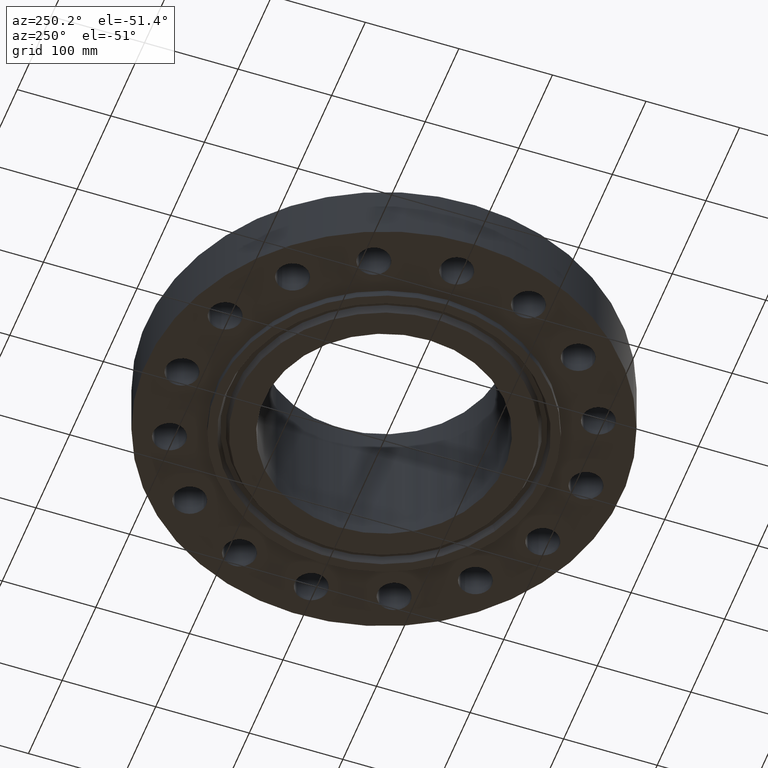
[diagram: clean part render]
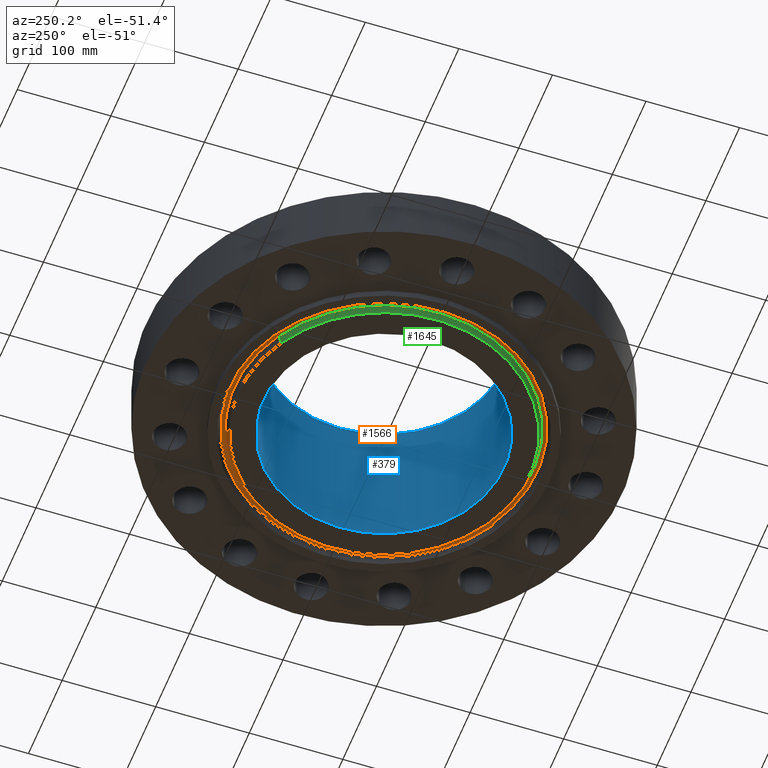
[diagram: same view with three faces highlighted in distinct colors, each labeled with its STEP entity id]
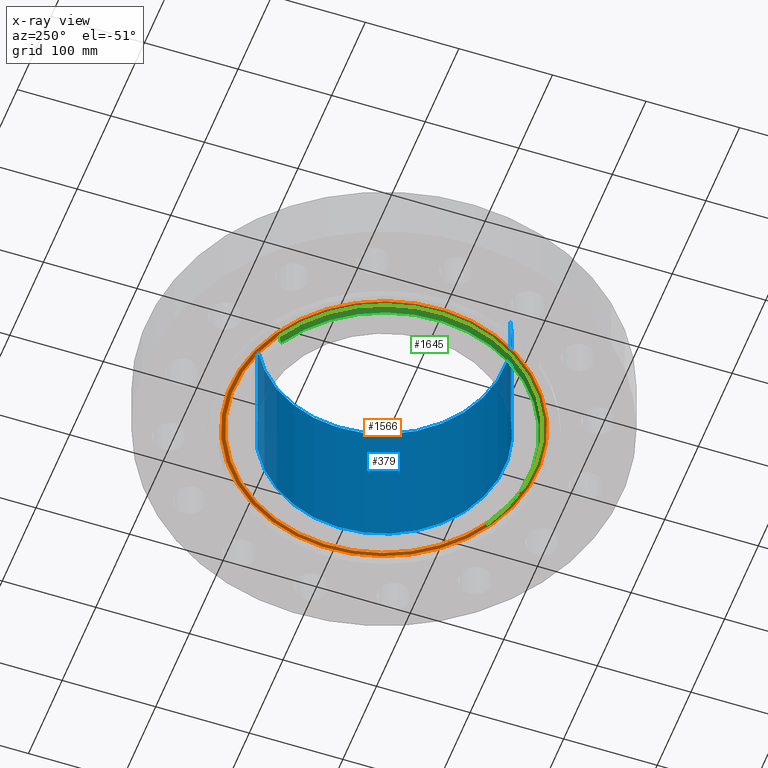
[diagram: x-ray of the same camera — body ghosted, the three highlighted faces saturated]
A machine part, auxiliary view with three faces highlighted in distinct colors.
The next image is the same camera in x-ray (body ghosted, the three faces saturated) — at least one of them is partly hidden behind the body in this view.
Their STEP definitions:

[orange] entity #1566 — the highlighted planar face has unit normal (0, 0, -1).
#484=AXIS2_PLACEMENT_3D('Plane Axis2P3D',#481,#482,#483) ;
#1488=AXIS2_PLACEMENT_3D('Circle Axis2P3D',#1486,#1487,$) ;
#1534=AXIS2_PLACEMENT_3D('Circle Axis2P3D',#1532,#1533,$) ;
#1550=AXIS2_PLACEMENT_3D('Circle Axis2P3D',#1548,#1549,$) ;
#1559=AXIS2_PLACEMENT_3D('Circle Axis2P3D',#1557,#1558,$) ;
#481=CARTESIAN_POINT('Axis2P3D Location',(0.,7.00000000003,0.)) ;
#1483=CARTESIAN_POINT('Vertex',(-3.09522925423,5.66577914576,-6.68756388849E-016)) ;
#1486=CARTESIAN_POINT('Axis2P3D Location',(0.,0.,-6.68756388849E-016)) ;
#1490=CARTESIAN_POINT('Vertex',(3.09522925423,-5.66577914576,-6.68756388849E-016)) ;
#1532=CARTESIAN_POINT('Axis2P3D Location',(0.,0.,-6.68756388849E-016)) ;
#1548=CARTESIAN_POINT('Axis2P3D Location',(0.,0.,0.)) ;
#1552=CARTESIAN_POINT('Vertex',(3.01744636299,-5.52339851839,2.88483148131E-016)) ;
#1554=CARTESIAN_POINT('Vertex',(-3.01744636299,5.52339851839,2.88483148131E-016)) ;
#1557=CARTESIAN_POINT('Axis2P3D Location',(0.,0.,0.)) ;
#482=DIRECTION('Axis2P3D Direction',(0.,0.,-0.0393700787402)) ;
#483=DIRECTION('Axis2P3D XDirection',(0.0393700787402,0.,0.)) ;
#1487=DIRECTION('Axis2P3D Direction',(0.,0.,0.0393700787402)) ;
#1533=DIRECTION('Axis2P3D Direction',(0.,0.,0.0393700787402)) ;
#1549=DIRECTION('Axis2P3D Direction',(0.,0.,-0.0393700787402)) ;
#1558=DIRECTION('Axis2P3D Direction',(0.,0.,-0.0393700787402)) ;
#1545=ORIENTED_EDGE('',*,*,#1492,.F.) ;
#1546=ORIENTED_EDGE('',*,*,#1536,.F.) ;
#1563=ORIENTED_EDGE('',*,*,#1556,.T.) ;
#1564=ORIENTED_EDGE('',*,*,#1561,.T.) ;
#1565=FACE_BOUND('',#1562,.T.) ;
#1566=ADVANCED_FACE('PartBody',(#1547,#1565),#485,.T.) ;
#1489=CIRCLE('generated circle',#1488,6.45612093016) ;
#1535=CIRCLE('generated circle',#1534,6.45612093016) ;
#1551=CIRCLE('generated circle',#1550,6.2938790699) ;
#1560=CIRCLE('generated circle',#1559,6.2938790699) ;
#1492=EDGE_CURVE('',#1484,#1491,#1489,.T.) ;
#1536=EDGE_CURVE('',#1491,#1484,#1535,.T.) ;
#1556=EDGE_CURVE('',#1553,#1555,#1551,.F.) ;
#1561=EDGE_CURVE('',#1555,#1553,#1560,.F.) ;
#1544=EDGE_LOOP('',(#1545,#1546)) ;
#1562=EDGE_LOOP('',(#1563,#1564)) ;
#1547=FACE_OUTER_BOUND('',#1544,.T.) ;
#485=PLANE('',#484) ;
#1484=VERTEX_POINT('',#1483) ;
#1491=VERTEX_POINT('',#1490) ;
#1553=VERTEX_POINT('',#1552) ;
#1555=VERTEX_POINT('',#1554) ;

[blue] entity #379 — the highlighted cylindrical surface (partial cylindrical patch) has radius 128.727 mm, axis along (0, 0, -1).
#343=AXIS2_PLACEMENT_3D('Cylinder Axis2P3D',#340,#341,#342) ;
#347=AXIS2_PLACEMENT_3D('Circle Axis2P3D',#345,#346,$) ;
#363=AXIS2_PLACEMENT_3D('Circle Axis2P3D',#361,#362,$) ;
#340=CARTESIAN_POINT('Axis2P3D Location',(0.,0.,2.84350000001)) ;
#345=CARTESIAN_POINT('Axis2P3D Location',(0.,0.,6.00000000002)) ;
#349=CARTESIAN_POINT('Vertex',(2.42972862966,4.44758842368,6.00000000002)) ;
#351=CARTESIAN_POINT('Vertex',(-2.42972862966,-4.44758842368,6.00000000002)) ;
#354=CARTESIAN_POINT('Line Origine',(2.42972862966,4.44758842368,2.84350000001)) ;
#358=CARTESIAN_POINT('Vertex',(2.42972862966,4.44758842368,-0.313000000001)) ;
#361=CARTESIAN_POINT('Axis2P3D Location',(0.,0.,-0.313000000001)) ;
#365=CARTESIAN_POINT('Vertex',(-2.42972862966,-4.44758842368,-0.313000000001)) ;
#368=CARTESIAN_POINT('Line Origine',(-2.42972862966,-4.44758842368,2.84350000001)) ;
#341=DIRECTION('Axis2P3D Direction',(0.,0.,-0.0393700787402)) ;
#342=DIRECTION('Axis2P3D XDirection',(-0.0188750212049,-0.0345504945626,0.)) ;
#346=DIRECTION('Axis2P3D Direction',(0.,0.,-0.0393700787402)) ;
#355=DIRECTION('Vector Direction',(0.,0.,-0.0393700787402)) ;
#362=DIRECTION('Axis2P3D Direction',(0.,0.,-0.0393700787402)) ;
#369=DIRECTION('Vector Direction',(0.,0.,-0.0393700787402)) ;
#356=VECTOR('Line Direction',#355,0.0393700787402) ;
#370=VECTOR('Line Direction',#369,0.0393700787402) ;
#374=ORIENTED_EDGE('',*,*,#353,.F.) ;
#375=ORIENTED_EDGE('',*,*,#360,.T.) ;
#376=ORIENTED_EDGE('',*,*,#367,.T.) ;
#377=ORIENTED_EDGE('',*,*,#372,.F.) ;
#379=ADVANCED_FACE('PartBody',(#378),#344,.F.) ;
#348=CIRCLE('generated circle',#347,5.06800000002) ;
#364=CIRCLE('generated circle',#363,5.06800000002) ;
#344=CYLINDRICAL_SURFACE('generated cylinder',#343,5.06800000002) ;
#353=EDGE_CURVE('',#350,#352,#348,.T.) ;
#360=EDGE_CURVE('',#350,#359,#357,.T.) ;
#367=EDGE_CURVE('',#359,#366,#364,.T.) ;
#372=EDGE_CURVE('',#352,#366,#371,.T.) ;
#373=EDGE_LOOP('',(#374,#375,#376,#377)) ;
#378=FACE_OUTER_BOUND('',#373,.T.) ;
#357=LINE('Line',#354,#356) ;
#371=LINE('Line',#368,#370) ;
#350=VERTEX_POINT('',#349) ;
#352=VERTEX_POINT('',#351) ;
#359=VERTEX_POINT('',#358) ;
#366=VERTEX_POINT('',#365) ;

[green] entity #1645 — the highlighted conical surface has half-angle 23 deg.
#1453=AXIS2_PLACEMENT_3D('Circle Axis2P3D',#1451,#1452,$) ;
#1607=AXIS2_PLACEMENT_3D('Circle Axis2P3D',#1605,#1606,$) ;
#1620=AXIS2_PLACEMENT_3D('Cone Axis2P3D',#1617,#1618,#1619) ;
#1446=CARTESIAN_POINT('Vertex',(-2.94391251981,5.38879572131,-0.313000000001)) ;
#1448=CARTESIAN_POINT('Vertex',(2.94391251981,-5.38879572131,-0.313000000001)) ;
#1451=CARTESIAN_POINT('Axis2P3D Location',(-1.1189649382E-015,0.,-0.313000000001)) ;
#1583=CARTESIAN_POINT('Vertex',(3.0037656434,-5.49835612915,-0.0188873350169)) ;
#1590=CARTESIAN_POINT('Vertex',(-3.0037656434,5.49835612915,-0.0188873350169)) ;
#1605=CARTESIAN_POINT('Axis2P3D Location',(0.,0.,-0.0188873350169)) ;
#1617=CARTESIAN_POINT('Axis2P3D Location',(0.,0.,-0.373000000001)) ;
#1622=CARTESIAN_POINT('Line Origine',(-2.97383908161,5.44357592523,-0.165943667509)) ;
#1627=CARTESIAN_POINT('Line Origine',(2.97383908161,-5.44357592523,-0.165943667509)) ;
#1452=DIRECTION('Axis2P3D Direction',(0.,0.,-0.0393700787402)) ;
#1606=DIRECTION('Axis2P3D Direction',(0.,0.,0.0393700787402)) ;
#1618=DIRECTION('Axis2P3D Direction',(0.,0.,0.0393700787402)) ;
#1619=DIRECTION('Axis2P3D XDirection',(-0.0188750212049,0.0345504945626,0.)) ;
#1623=DIRECTION('Vector Direction',(-0.00737505833565,0.0134999537303,0.0362403485611)) ;
#1628=DIRECTION('Vector Direction',(0.00737505833565,-0.0134999537303,0.0362403485611)) ;
#1624=VECTOR('Line Direction',#1623,0.0393700787402) ;
#1629=VECTOR('Line Direction',#1628,0.0393700787402) ;
#1640=ORIENTED_EDGE('',*,*,#1631,.F.) ;
#1641=ORIENTED_EDGE('',*,*,#1609,.F.) ;
#1642=ORIENTED_EDGE('',*,*,#1626,.T.) ;
#1643=ORIENTED_EDGE('',*,*,#1455,.F.) ;
#1645=ADVANCED_FACE('PartBody',(#1644),#1621,.T.) ;
#1454=CIRCLE('generated circle',#1453,6.14050000002) ;
#1608=CIRCLE('generated circle',#1607,6.26534341944) ;
#1621=CONICAL_SURFACE('Cone',#1620,6.11503151105,0.401425727959) ;
#1455=EDGE_CURVE('',#1449,#1447,#1454,.T.) ;
#1609=EDGE_CURVE('',#1591,#1584,#1608,.T.) ;
#1626=EDGE_CURVE('',#1591,#1447,#1625,.F.) ;
#1631=EDGE_CURVE('',#1584,#1449,#1630,.F.) ;
#1639=EDGE_LOOP('',(#1640,#1641,#1642,#1643)) ;
#1644=FACE_OUTER_BOUND('',#1639,.T.) ;
#1625=LINE('Line',#1622,#1624) ;
#1630=LINE('Line',#1627,#1629) ;
#1447=VERTEX_POINT('',#1446) ;
#1449=VERTEX_POINT('',#1448) ;
#1584=VERTEX_POINT('',#1583) ;
#1591=VERTEX_POINT('',#1590) ;